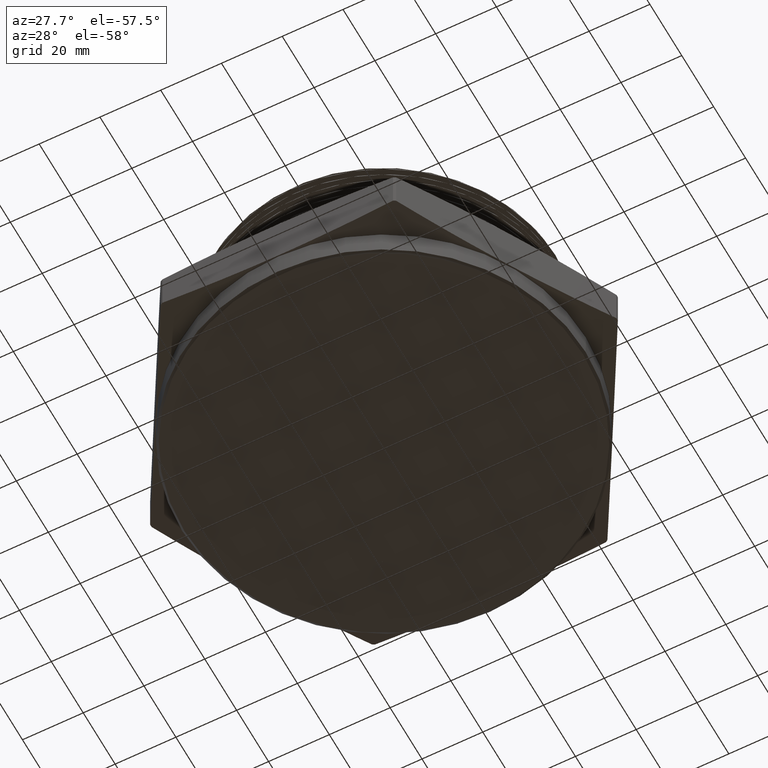
[diagram: clean part render]
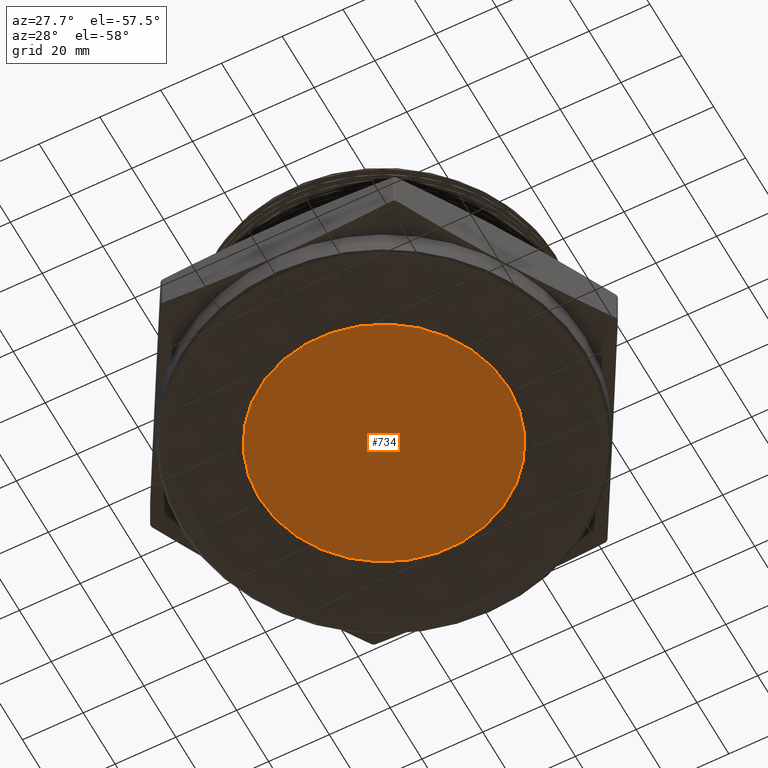
[diagram: same view with one face highlighted and labeled with its STEP entity id]
A machine part, auxiliary view. The second image highlights one B-rep face of the part: STEP entity #734.
In plain terms, the highlighted planar face has unit normal (0, 0, -1).
Its self-contained STEP definition (entity closure, byte-faithful):
#734 = ADVANCED_FACE ( 'NONE', ( #3477 ), #5806, .T. ) ;
#3477 = FACE_OUTER_BOUND ( 'NONE', #5470, .T. ) ;
#3564 = CIRCLE ( 'NONE', #8041, 1.616999999999999800 ) ;
#3573 = CIRCLE ( 'NONE', #8043, 1.616999999999999800 ) ;
#3938 = EDGE_CURVE ( 'NONE', #5378, #5373, #3564, .T. ) ;
#3941 = EDGE_CURVE ( 'NONE', #5373, #5378, #3573, .T. ) ;
#5373 = VERTEX_POINT ( 'NONE', #6702 ) ;
#5378 = VERTEX_POINT ( 'NONE', #6657 ) ;
#5470 = EDGE_LOOP ( 'NONE', ( #6894, #6896 ) ) ;
#5806 = PLANE ( 'NONE',  #8022 ) ;
#5808 = CARTESIAN_POINT ( 'NONE',  ( 0.0000000000000000000, 0.0000000000000000000, -0.3499999999999999800 ) ) ;
#5813 = DIRECTION ( 'NONE',  ( 0.0000000000000000000, 0.0000000000000000000, -1.000000000000000000 ) ) ;
#5814 = DIRECTION ( 'NONE',  ( -1.000000000000000000, 0.0000000000000000000, -0.0000000000000000000 ) ) ;
#6512 = CARTESIAN_POINT ( 'NONE',  ( 3.673940397442060700E-018, 0.0000000000000000000, -0.3499999999999998100 ) ) ;
#6513 = DIRECTION ( 'NONE',  ( 0.0000000000000000000, 0.0000000000000000000, -1.000000000000000000 ) ) ;
#6514 = DIRECTION ( 'NONE',  ( -1.000000000000000000, 0.0000000000000000000, 0.0000000000000000000 ) ) ;
#6519 = CARTESIAN_POINT ( 'NONE',  ( 3.673940397442060700E-018, 0.0000000000000000000, -0.3499999999999998100 ) ) ;
#6520 = DIRECTION ( 'NONE',  ( 0.0000000000000000000, 0.0000000000000000000, -1.000000000000000000 ) ) ;
#6521 = DIRECTION ( 'NONE',  ( -1.000000000000000000, 0.0000000000000000000, 0.0000000000000000000 ) ) ;
#6657 = CARTESIAN_POINT ( 'NONE',  ( -1.616999999999999800, 1.980253874221269800E-016, -0.3499999999999998100 ) ) ;
#6702 = CARTESIAN_POINT ( 'NONE',  ( 1.616999999999999800, 0.0000000000000000000, -0.3499999999999998100 ) ) ;
#6894 = ORIENTED_EDGE ( 'NONE', *, *, #3941, .T. ) ;
#6896 = ORIENTED_EDGE ( 'NONE', *, *, #3938, .T. ) ;
#8022 = AXIS2_PLACEMENT_3D ( 'NONE', #5808, #5813, #5814 ) ;
#8041 = AXIS2_PLACEMENT_3D ( 'NONE', #6512, #6513, #6514 ) ;
#8043 = AXIS2_PLACEMENT_3D ( 'NONE', #6519, #6520, #6521 ) ;